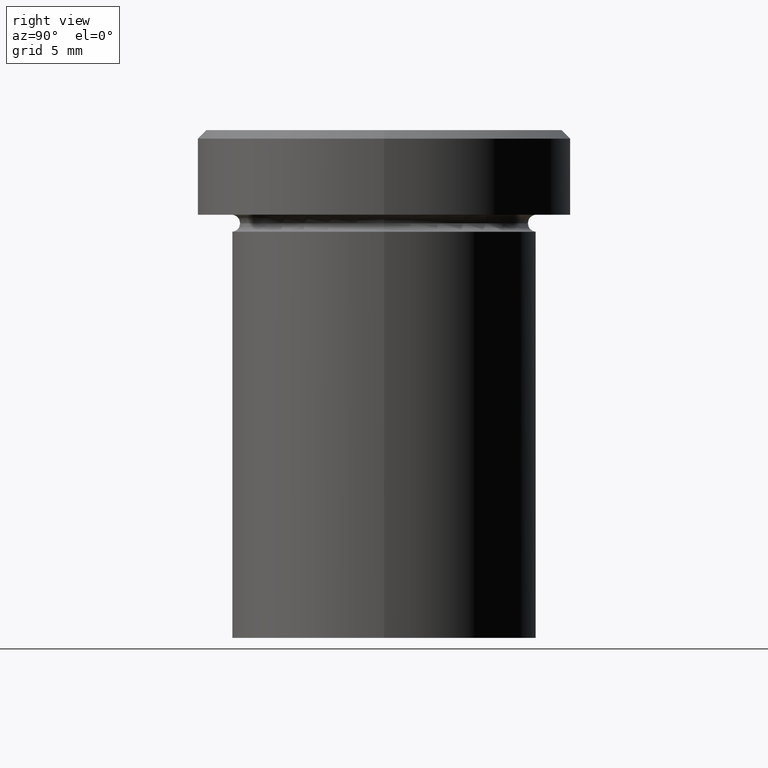
[diagram: clean part render]
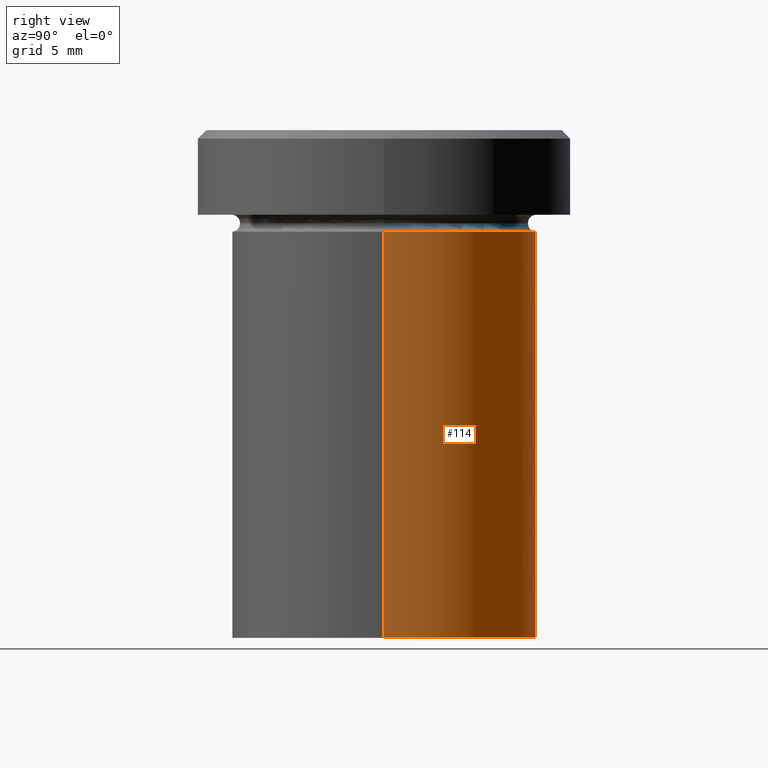
[diagram: same view with one face highlighted and labeled with its STEP entity id]
A machine part, right view. The second image highlights one B-rep face of the part: STEP entity #114.
In plain terms, the highlighted cylindrical surface (partial cylindrical patch) has radius 9 mm, axis along (-0, -0, 1).
Its self-contained STEP definition (entity closure, byte-faithful):
#14 = ORIENTED_EDGE ( 'NONE', *, *, #400, .T. ) ;
#17 = EDGE_CURVE ( 'NONE', #77, #259, #326, .T. ) ;
#25 = ORIENTED_EDGE ( 'NONE', *, *, #391, .F. ) ;
#66 = CARTESIAN_POINT ( 'NONE',  ( 9.000000000000000000, 0.000000000000000000, -6.000000000000000000 ) ) ;
#77 = VERTEX_POINT ( 'NONE', #106 ) ;
#100 = LINE ( 'NONE', #155, #167 ) ;
#106 = CARTESIAN_POINT ( 'NONE',  ( -9.000000000000000000, 1.102182119232617714E-15, -30.00000000000000000 ) ) ;
#114 = ADVANCED_FACE ( 'NONE', ( #336 ), #242, .T. ) ;
#125 = EDGE_CURVE ( 'NONE', #254, #259, #251, .T. ) ;
#130 = DIRECTION ( 'NONE',  ( -0.000000000000000000, -0.000000000000000000, 1.000000000000000000 ) ) ;
#131 = AXIS2_PLACEMENT_3D ( 'NONE', #340, #130, #327 ) ;
#154 = DIRECTION ( 'NONE',  ( -0.000000000000000000, -0.000000000000000000, 1.000000000000000000 ) ) ;
#155 = CARTESIAN_POINT ( 'NONE',  ( 9.000000000000000000, 0.000000000000000000, 0.000000000000000000 ) ) ;
#167 = VECTOR ( 'NONE', #268, 1000.000000000000000 ) ;
#177 = DIRECTION ( 'NONE',  ( -0.000000000000000000, -0.000000000000000000, 1.000000000000000000 ) ) ;
#186 = ORIENTED_EDGE ( 'NONE', *, *, #125, .F. ) ;
#187 = AXIS2_PLACEMENT_3D ( 'NONE', #407, #177, #333 ) ;
#212 = DIRECTION ( 'NONE',  ( 1.000000000000000000, 0.000000000000000000, 0.000000000000000000 ) ) ;
#229 = EDGE_LOOP ( 'NONE', ( #14, #233, #186, #25 ) ) ;
#233 = ORIENTED_EDGE ( 'NONE', *, *, #17, .T. ) ;
#242 = CYLINDRICAL_SURFACE ( 'NONE', #303, 9.000000000000000000 ) ;
#251 = CIRCLE ( 'NONE', #131, 9.000000000000000000 ) ;
#254 = VERTEX_POINT ( 'NONE', #66 ) ;
#259 = VERTEX_POINT ( 'NONE', #272 ) ;
#268 = DIRECTION ( 'NONE',  ( -0.000000000000000000, -0.000000000000000000, 1.000000000000000000 ) ) ;
#272 = CARTESIAN_POINT ( 'NONE',  ( -9.000000000000000000, 1.102182119232617714E-15, -6.000000000000000000 ) ) ;
#290 = DIRECTION ( 'NONE',  ( -0.000000000000000000, -0.000000000000000000, 1.000000000000000000 ) ) ;
#303 = AXIS2_PLACEMENT_3D ( 'NONE', #378, #154, #212 ) ;
#326 = LINE ( 'NONE', #328, #330 ) ;
#327 = DIRECTION ( 'NONE',  ( 1.000000000000000000, 0.000000000000000000, 0.000000000000000000 ) ) ;
#328 = CARTESIAN_POINT ( 'NONE',  ( -9.000000000000000000, 1.102182119232617714E-15, 0.000000000000000000 ) ) ;
#330 = VECTOR ( 'NONE', #290, 1000.000000000000000 ) ;
#333 = DIRECTION ( 'NONE',  ( 1.000000000000000000, 0.000000000000000000, 0.000000000000000000 ) ) ;
#336 = FACE_OUTER_BOUND ( 'NONE', #229, .T. ) ;
#340 = CARTESIAN_POINT ( 'NONE',  ( 0.000000000000000000, 0.000000000000000000, -6.000000000000000000 ) ) ;
#360 = VERTEX_POINT ( 'NONE', #366 ) ;
#366 = CARTESIAN_POINT ( 'NONE',  ( 9.000000000000000000, 0.000000000000000000, -30.00000000000000000 ) ) ;
#378 = CARTESIAN_POINT ( 'NONE',  ( 0.000000000000000000, 0.000000000000000000, 0.000000000000000000 ) ) ;
#391 = EDGE_CURVE ( 'NONE', #360, #254, #100, .T. ) ;
#400 = EDGE_CURVE ( 'NONE', #360, #77, #405, .T. ) ;
#405 = CIRCLE ( 'NONE', #187, 9.000000000000000000 ) ;
#407 = CARTESIAN_POINT ( 'NONE',  ( 0.000000000000000000, 0.000000000000000000, -30.00000000000000000 ) ) ;